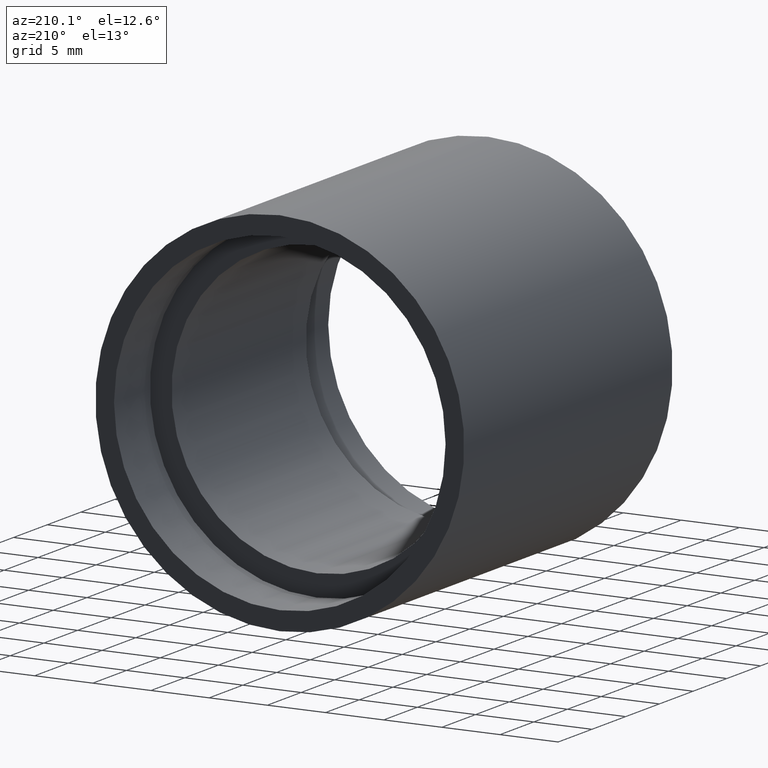
[diagram: clean part render]
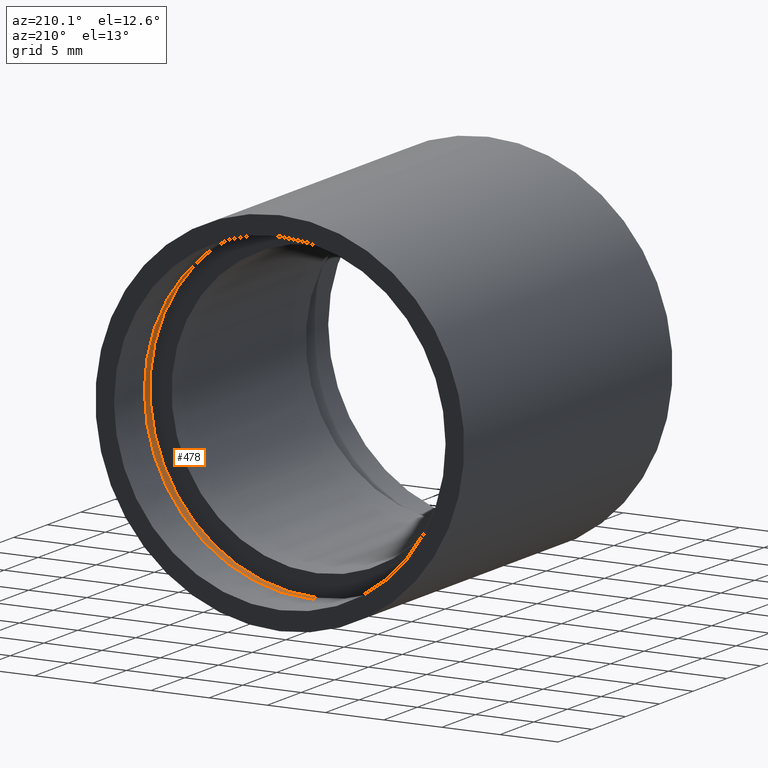
[diagram: same view with one face highlighted and labeled with its STEP entity id]
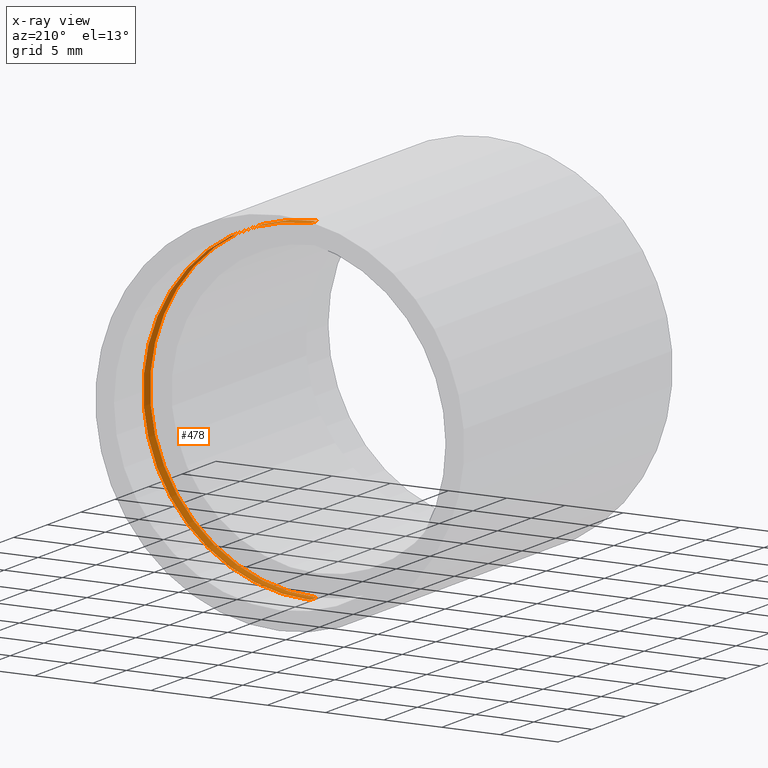
[diagram: x-ray of the same camera — body ghosted, the highlighted face saturated]
A machine part, auxiliary view. The second image highlights one B-rep face of the part: STEP entity #478.
The next image is the same camera in x-ray: the body ghosted, the highlighted face saturated — about 1% of this face is hidden behind the body in this view.
In plain terms, the highlighted cylindrical surface (partial cylindrical patch) has radius 14.35 mm, axis along (-0, 1, -0).
Its self-contained STEP definition (entity closure, byte-faithful):
#3 = ORIENTED_EDGE ( 'NONE', *, *, #485, .T. ) ;
#10 = DIRECTION ( 'NONE',  ( -0.0000000000000000000, 1.000000000000000000, -0.0000000000000000000 ) ) ;
#39 = DIRECTION ( 'NONE',  ( -0.0000000000000000000, 1.000000000000000000, -0.0000000000000000000 ) ) ;
#53 = AXIS2_PLACEMENT_3D ( 'NONE', #177, #519, #411 ) ;
#79 = CARTESIAN_POINT ( 'NONE',  ( 0.0000000000000000000, 25.39999999999997700, 14.35000000000001900 ) ) ;
#81 = EDGE_CURVE ( 'NONE', #166, #327, #433, .T. ) ;
#120 = AXIS2_PLACEMENT_3D ( 'NONE', #405, #547, #260 ) ;
#159 = LINE ( 'NONE', #417, #249 ) ;
#166 = VERTEX_POINT ( 'NONE', #264 ) ;
#177 = CARTESIAN_POINT ( 'NONE',  ( 0.0000000000000000000, 25.39999999999997700, 0.0000000000000000000 ) ) ;
#184 = FACE_OUTER_BOUND ( 'NONE', #457, .T. ) ;
#249 = VECTOR ( 'NONE', #326, 1000.000000000000000 ) ;
#260 = DIRECTION ( 'NONE',  ( 0.0000000000000000000, 0.0000000000000000000, 1.000000000000000000 ) ) ;
#264 = CARTESIAN_POINT ( 'NONE',  ( 0.0000000000000000000, 26.39999999999997700, 14.35000000000001700 ) ) ;
#274 = ORIENTED_EDGE ( 'NONE', *, *, #578, .F. ) ;
#285 = LINE ( 'NONE', #334, #400 ) ;
#326 = DIRECTION ( 'NONE',  ( -0.0000000000000000000, 1.000000000000000000, -0.0000000000000000000 ) ) ;
#327 = VERTEX_POINT ( 'NONE', #372 ) ;
#334 = CARTESIAN_POINT ( 'NONE',  ( 1.757368156776454300E-015, 161.3761669434274500, -14.35000000000001900 ) ) ;
#346 = EDGE_CURVE ( 'NONE', #597, #428, #545, .T. ) ;
#370 = ORIENTED_EDGE ( 'NONE', *, *, #346, .F. ) ;
#372 = CARTESIAN_POINT ( 'NONE',  ( 1.757368156776454000E-015, 26.39999999999997700, -14.35000000000001700 ) ) ;
#389 = CARTESIAN_POINT ( 'NONE',  ( 1.757368156776454300E-015, 25.39999999999997700, -14.35000000000001900 ) ) ;
#400 = VECTOR ( 'NONE', #10, 1000.000000000000000 ) ;
#405 = CARTESIAN_POINT ( 'NONE',  ( 0.0000000000000000000, 26.39999999999997700, 0.0000000000000000000 ) ) ;
#411 = DIRECTION ( 'NONE',  ( 0.0000000000000000000, 0.0000000000000000000, 1.000000000000000000 ) ) ;
#416 = CARTESIAN_POINT ( 'NONE',  ( 0.0000000000000000000, 161.3761669434274500, 0.0000000000000000000 ) ) ;
#417 = CARTESIAN_POINT ( 'NONE',  ( 0.0000000000000000000, 161.3761669434274500, 14.35000000000001900 ) ) ;
#428 = VERTEX_POINT ( 'NONE', #389 ) ;
#433 = CIRCLE ( 'NONE', #120, 14.35000000000001700 ) ;
#457 = EDGE_LOOP ( 'NONE', ( #274, #370, #3, #544 ) ) ;
#473 = DIRECTION ( 'NONE',  ( 0.0000000000000000000, 0.0000000000000000000, 1.000000000000000000 ) ) ;
#478 = ADVANCED_FACE ( 'NONE', ( #184 ), #492, .F. ) ;
#485 = EDGE_CURVE ( 'NONE', #597, #166, #159, .T. ) ;
#492 = CYLINDRICAL_SURFACE ( 'NONE', #497, 14.35000000000001900 ) ;
#497 = AXIS2_PLACEMENT_3D ( 'NONE', #416, #39, #473 ) ;
#519 = DIRECTION ( 'NONE',  ( -0.0000000000000000000, 1.000000000000000000, -0.0000000000000000000 ) ) ;
#544 = ORIENTED_EDGE ( 'NONE', *, *, #81, .T. ) ;
#545 = CIRCLE ( 'NONE', #53, 14.35000000000001900 ) ;
#547 = DIRECTION ( 'NONE',  ( -0.0000000000000000000, 1.000000000000000000, -0.0000000000000000000 ) ) ;
#578 = EDGE_CURVE ( 'NONE', #428, #327, #285, .T. ) ;
#597 = VERTEX_POINT ( 'NONE', #79 ) ;